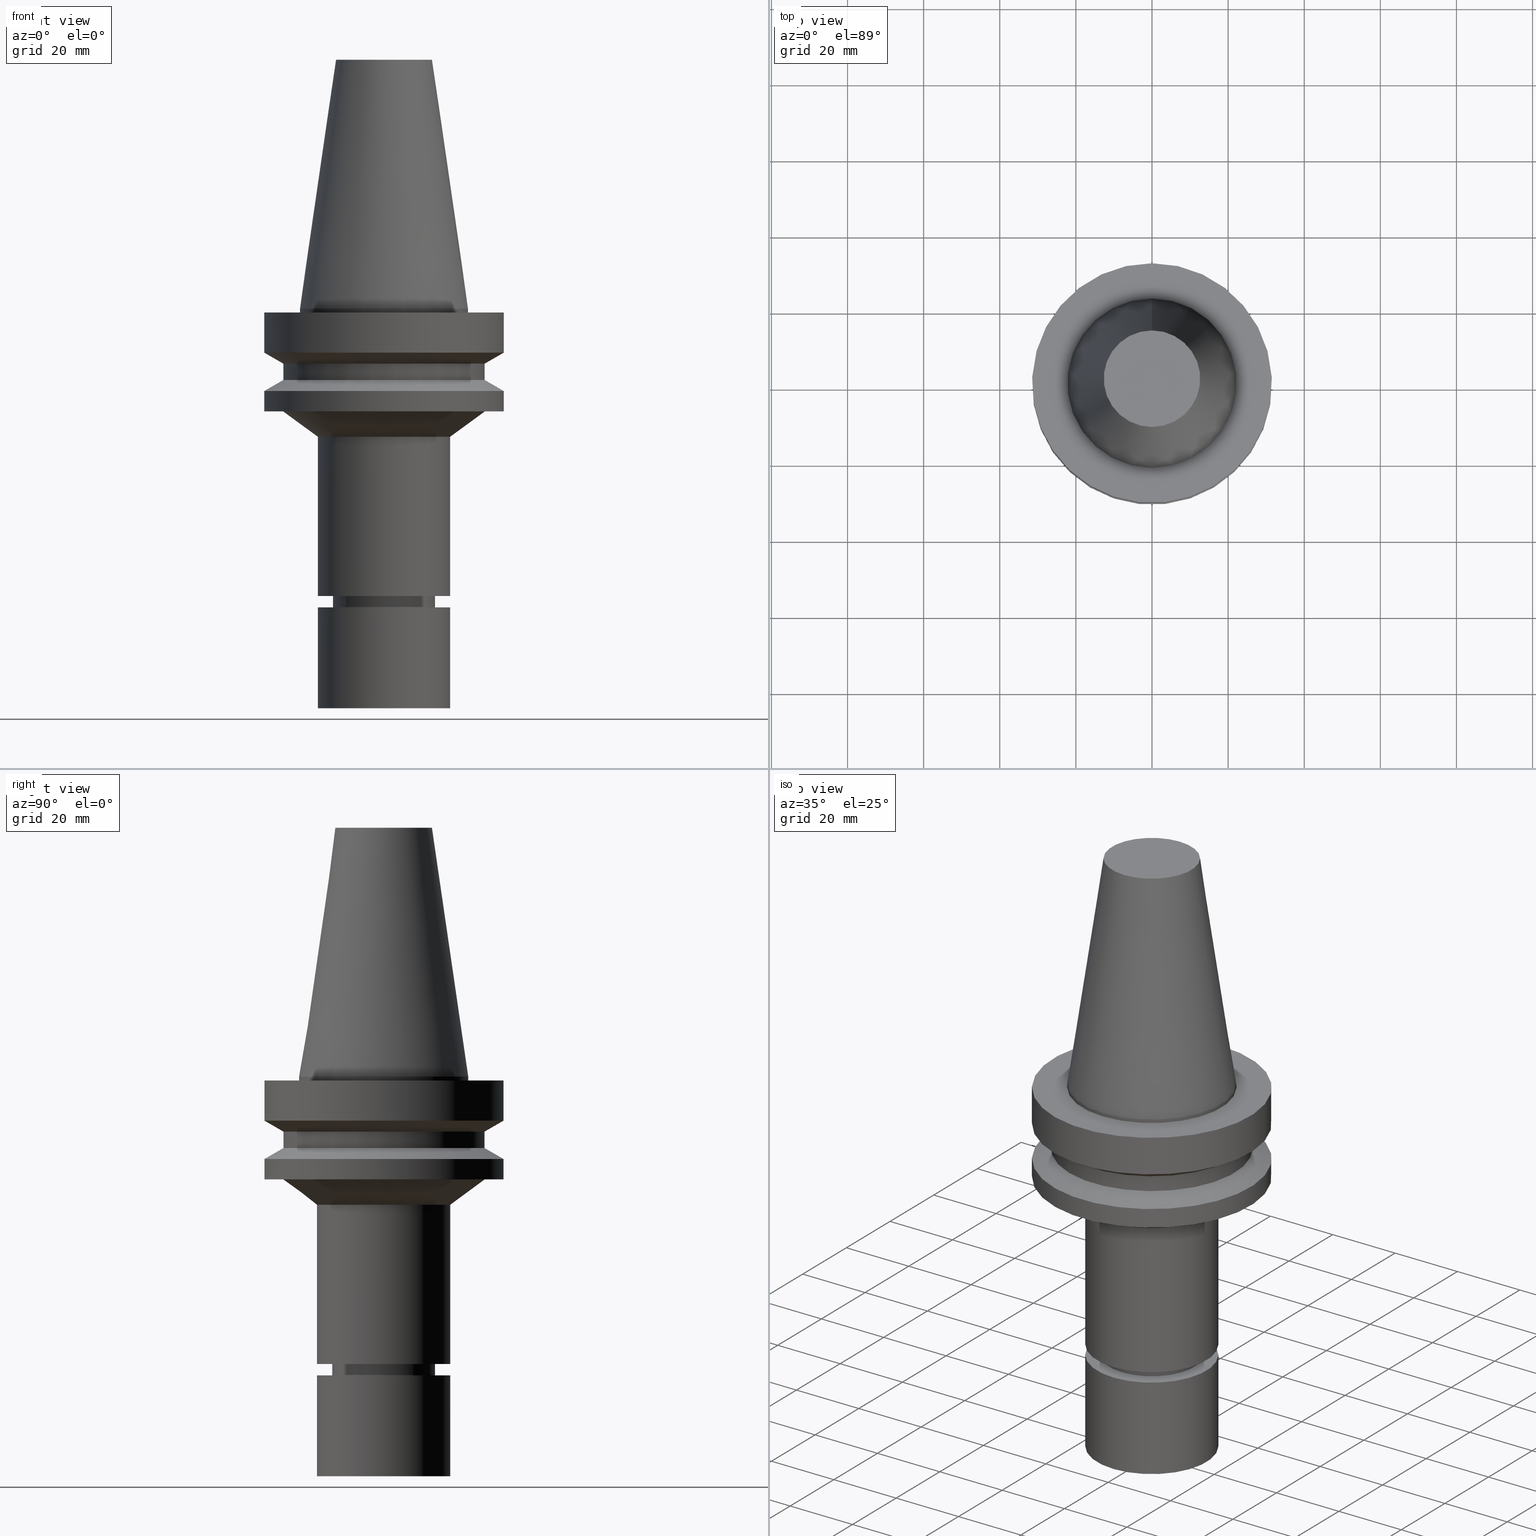
[diagram: canonical four-view strip — front | top / right | iso, engineering-drawing reading convention]
A machine part, canonical four-view strip (front | top / right | iso — engineering-drawing reading convention). The complete STEP part file that produces these views, byte-faithful:
ISO-10303-21;
HEADER;
FILE_DESCRIPTION((''),'1');
FILE_NAME('V:/90_\X2\53D65F9730C730FC30BF\X0\/00_\X2\6DE18DEF30C730FC30BF\X0\/ALL/BBT-BKUS\X2\FF76FF80FF9BFF78FF9E752852A05DE556F3\X0\201801/BBT40-MEGAER/BBT40-MEGAER20-105NL.stp','2018-02-07T02:00:44',(''),(''),'Spatial Interop R21 SP3','Kubotek KeyCreator 2011 V10.0.2 (22737)',' ');
FILE_SCHEMA(('automotive_design'));
ENDSEC;
DATA;
#1=MECHANICAL_DESIGN_GEOMETRIC_PRESENTATION_REPRESENTATION(' ',(#14,#15,#16,#17,#18,#19,#20,#21,#22,#23,#24,#25,#26,#27,#28,#29,#30,#31,#32,#33,#34,#35,#36,#37,#38,#39,#40,#41,#42,#43,#44,#45,#46,#47,#48,#49,#50,#51,#52,#53,#54,#55),#10);
#2=PRODUCT_DEFINITION_CONTEXT('',#56,'design');
#3=APPLICATION_PROTOCOL_DEFINITION('INTERNATIONAL STANDARD','automotive_design',1994,#56);
#4=PRODUCT_CATEGORY_RELATIONSHIP('NONE','NONE',#57,#58);
#5=SHAPE_DEFINITION_REPRESENTATION(#59,#60);
#6=PRODUCT_DEFINITION_CONTEXT('',#61,'design');
#7=APPLICATION_PROTOCOL_DEFINITION('INTERNATIONAL STANDARD','automotive_design',1994,#61);
#8=PRODUCT_CATEGORY_RELATIONSHIP('NONE','NONE',#62,#63);
#9=SHAPE_DEFINITION_REPRESENTATION(#64,#65);
#10= (GEOMETRIC_REPRESENTATION_CONTEXT(3)GLOBAL_UNCERTAINTY_ASSIGNED_CONTEXT((#68))GLOBAL_UNIT_ASSIGNED_CONTEXT((#70,#71,#72))REPRESENTATION_CONTEXT('NONE','WORKSPACE'));
#14=STYLED_ITEM('',(#74,#75),#76);
#15=STYLED_ITEM('',(#77,#78),#79);
#16=STYLED_ITEM('',(#80,#81),#82);
#17=STYLED_ITEM('',(#83),#84);
#18=STYLED_ITEM('',(#85,#86),#87);
#19=STYLED_ITEM('',(#88),#89);
#20=STYLED_ITEM('',(#90,#91),#92);
#21=STYLED_ITEM('',(#93),#94);
#22=STYLED_ITEM('',(#95,#96),#97);
#23=STYLED_ITEM('',(#98,#99),#100);
#24=STYLED_ITEM('',(#101),#102);
#25=STYLED_ITEM('',(#103),#104);
#26=STYLED_ITEM('',(#105),#106);
#27=STYLED_ITEM('',(#107,#108),#109);
#28=STYLED_ITEM('',(#110,#111),#112);
#29=STYLED_ITEM('',(#113,#114),#115);
#30=STYLED_ITEM('',(#116,#117),#118);
#31=STYLED_ITEM('',(#119),#120);
#32=STYLED_ITEM('',(#121),#122);
#33=STYLED_ITEM('',(#123),#124);
#34=STYLED_ITEM('',(#125,#126),#127);
#35=STYLED_ITEM('',(#128,#129),#130);
#36=STYLED_ITEM('',(#131),#132);
#37=STYLED_ITEM('',(#133,#134),#135);
#38=STYLED_ITEM('',(#136),#137);
#39=STYLED_ITEM('',(#138,#139),#140);
#40=STYLED_ITEM('',(#141,#142),#143);
#41=STYLED_ITEM('',(#144),#145);
#42=STYLED_ITEM('',(#146,#147),#148);
#43=STYLED_ITEM('',(#149),#150);
#44=STYLED_ITEM('',(#151),#152);
#45=STYLED_ITEM('',(#153,#154),#155);
#46=STYLED_ITEM('',(#156),#157);
#47=STYLED_ITEM('',(#158,#159),#160);
#48=STYLED_ITEM('',(#161),#162);
#49=STYLED_ITEM('',(#163,#164),#165);
#50=STYLED_ITEM('',(#166),#167);
#51=STYLED_ITEM('',(#168),#169);
#52=STYLED_ITEM('',(#170,#171),#172);
#53=STYLED_ITEM('',(#173),#174);
#54=STYLED_ITEM('',(#175,#176),#177);
#55=STYLED_ITEM('',(#178,#179),#180);
#56=APPLICATION_CONTEXT(' ');
#57=PRODUCT_CATEGORY('part','NONE');
#58=PRODUCT_RELATED_PRODUCT_CATEGORY('detail',' ',(#181));
#59=PRODUCT_DEFINITION_SHAPE('NONE','NONE',#182);
#60=ADVANCED_BREP_SHAPE_REPRESENTATION('Unnamed[1]',(#140,#183),#10);
#61=APPLICATION_CONTEXT(' ');
#62=PRODUCT_CATEGORY('part','NONE');
#63=PRODUCT_RELATED_PRODUCT_CATEGORY('detail',' ',(#184));
#64=PRODUCT_DEFINITION_SHAPE('NONE','NONE',#185);
#65=ADVANCED_BREP_SHAPE_REPRESENTATION('Unnamed[1]',(#177,#186),#10);
#68=UNCERTAINTY_MEASURE_WITH_UNIT(LENGTH_MEASURE(1.0E-006),#70,'','');
#70= (CONVERSION_BASED_UNIT('MILLIMETRE',#189)LENGTH_UNIT()NAMED_UNIT(#192));
#71= (NAMED_UNIT(#194)PLANE_ANGLE_UNIT()SI_UNIT($,.RADIAN.));
#72= (NAMED_UNIT(#194)SOLID_ANGLE_UNIT()SI_UNIT($,.STERADIAN.));
#74=PRESENTATION_STYLE_ASSIGNMENT((#200));
#75=PRESENTATION_STYLE_ASSIGNMENT((#201));
#76=ADVANCED_FACE('Unnamed[1]',(#202,#203),#204,.T.);
#77=PRESENTATION_STYLE_ASSIGNMENT((#205));
#78=PRESENTATION_STYLE_ASSIGNMENT((#206));
#79=ADVANCED_FACE('Unnamed[1]',(#207,#208),#209,.T.);
#80=PRESENTATION_STYLE_ASSIGNMENT((#210));
#81=PRESENTATION_STYLE_ASSIGNMENT((#211));
#82=ADVANCED_FACE('Unnamed[1]',(#212),#213,.T.);
#83=PRESENTATION_STYLE_ASSIGNMENT((#214));
#84=EDGE_CURVE('Unnamed[1]',#215,#215,#216,.T.);
#85=PRESENTATION_STYLE_ASSIGNMENT((#217));
#86=PRESENTATION_STYLE_ASSIGNMENT((#218));
#87=ADVANCED_FACE('Unnamed[1]',(#219,#220),#221,.T.);
#88=PRESENTATION_STYLE_ASSIGNMENT((#222));
#89=EDGE_CURVE('Unnamed[1]',#223,#223,#224,.T.);
#90=PRESENTATION_STYLE_ASSIGNMENT((#225));
#91=PRESENTATION_STYLE_ASSIGNMENT((#226));
#92=ADVANCED_FACE('Unnamed[1]',(#227,#228),#229,.T.);
#93=PRESENTATION_STYLE_ASSIGNMENT((#230));
#94=EDGE_CURVE('Unnamed[1]',#231,#231,#232,.T.);
#95=PRESENTATION_STYLE_ASSIGNMENT((#233));
#96=PRESENTATION_STYLE_ASSIGNMENT((#234));
#97=ADVANCED_FACE('Unnamed[1]',(#235,#236),#237,.T.);
#98=PRESENTATION_STYLE_ASSIGNMENT((#238));
#99=PRESENTATION_STYLE_ASSIGNMENT((#239));
#100=ADVANCED_FACE('Unnamed[1]',(#240,#241),#242,.T.);
#101=PRESENTATION_STYLE_ASSIGNMENT((#243));
#102=EDGE_CURVE('Unnamed[1]',#244,#244,#245,.T.);
#103=PRESENTATION_STYLE_ASSIGNMENT((#246));
#104=EDGE_CURVE('Unnamed[1]',#247,#247,#248,.T.);
#105=PRESENTATION_STYLE_ASSIGNMENT((#249));
#106=EDGE_CURVE('Unnamed[1]',#250,#250,#251,.T.);
#107=PRESENTATION_STYLE_ASSIGNMENT((#252));
#108=PRESENTATION_STYLE_ASSIGNMENT((#253));
#109=ADVANCED_FACE('Unnamed[1]',(#254,#255),#256,.T.);
#110=PRESENTATION_STYLE_ASSIGNMENT((#257));
#111=PRESENTATION_STYLE_ASSIGNMENT((#258));
#112=ADVANCED_FACE('Unnamed[1]',(#259,#260),#261,.T.);
#113=PRESENTATION_STYLE_ASSIGNMENT((#262));
#114=PRESENTATION_STYLE_ASSIGNMENT((#263));
#115=ADVANCED_FACE('Unnamed[1]',(#264,#265),#266,.T.);
#116=PRESENTATION_STYLE_ASSIGNMENT((#267));
#117=PRESENTATION_STYLE_ASSIGNMENT((#268));
#118=ADVANCED_FACE('Unnamed[1]',(#269,#270),#271,.T.);
#119=PRESENTATION_STYLE_ASSIGNMENT((#272));
#120=EDGE_CURVE('Unnamed[1]',#273,#273,#274,.T.);
#121=PRESENTATION_STYLE_ASSIGNMENT((#275));
#122=EDGE_CURVE('Unnamed[1]',#276,#276,#277,.T.);
#123=PRESENTATION_STYLE_ASSIGNMENT((#278));
#124=EDGE_CURVE('Unnamed[1]',#279,#279,#280,.T.);
#125=PRESENTATION_STYLE_ASSIGNMENT((#281));
#126=PRESENTATION_STYLE_ASSIGNMENT((#282));
#127=ADVANCED_FACE('Unnamed[1]',(#283,#284),#285,.T.);
#128=PRESENTATION_STYLE_ASSIGNMENT((#286));
#129=PRESENTATION_STYLE_ASSIGNMENT((#287));
#130=ADVANCED_FACE('Unnamed[1]',(#288),#289,.T.);
#131=PRESENTATION_STYLE_ASSIGNMENT((#290));
#132=EDGE_CURVE('Unnamed[1]',#291,#291,#292,.T.);
#133=PRESENTATION_STYLE_ASSIGNMENT((#293));
#134=PRESENTATION_STYLE_ASSIGNMENT((#294));
#135=ADVANCED_FACE('Unnamed[1]',(#295),#296,.T.);
#136=PRESENTATION_STYLE_ASSIGNMENT((#297));
#137=EDGE_CURVE('Unnamed[1]',#298,#298,#299,.T.);
#138=PRESENTATION_STYLE_ASSIGNMENT((#300));
#139=PRESENTATION_STYLE_ASSIGNMENT((#301));
#140=MANIFOLD_SOLID_BREP('Unnamed[1]',#302);
#141=PRESENTATION_STYLE_ASSIGNMENT((#303));
#142=PRESENTATION_STYLE_ASSIGNMENT((#304));
#143=ADVANCED_FACE('Unnamed[1]',(#305,#306),#307,.T.);
#144=PRESENTATION_STYLE_ASSIGNMENT((#308));
#145=EDGE_CURVE('Unnamed[1]',#309,#309,#310,.T.);
#146=PRESENTATION_STYLE_ASSIGNMENT((#311));
#147=PRESENTATION_STYLE_ASSIGNMENT((#312));
#148=ADVANCED_FACE('Unnamed[1]',(#313),#314,.T.);
#149=PRESENTATION_STYLE_ASSIGNMENT((#315));
#150=EDGE_CURVE('Unnamed[1]',#316,#316,#317,.T.);
#151=PRESENTATION_STYLE_ASSIGNMENT((#318));
#152=EDGE_CURVE('Unnamed[1]',#319,#319,#320,.T.);
#153=PRESENTATION_STYLE_ASSIGNMENT((#321));
#154=PRESENTATION_STYLE_ASSIGNMENT((#322));
#155=ADVANCED_FACE('Unnamed[1]',(#323,#324),#325,.T.);
#156=PRESENTATION_STYLE_ASSIGNMENT((#326));
#157=EDGE_CURVE('Unnamed[1]',#327,#327,#328,.T.);
#158=PRESENTATION_STYLE_ASSIGNMENT((#329));
#159=PRESENTATION_STYLE_ASSIGNMENT((#330));
#160=ADVANCED_FACE('Unnamed[1]',(#331,#332),#333,.T.);
#161=PRESENTATION_STYLE_ASSIGNMENT((#334));
#162=EDGE_CURVE('Unnamed[1]',#335,#335,#336,.T.);
#163=PRESENTATION_STYLE_ASSIGNMENT((#337));
#164=PRESENTATION_STYLE_ASSIGNMENT((#338));
#165=ADVANCED_FACE('Unnamed[1]',(#339,#340),#341,.T.);
#166=PRESENTATION_STYLE_ASSIGNMENT((#342));
#167=EDGE_CURVE('Unnamed[1]',#343,#343,#344,.T.);
#168=PRESENTATION_STYLE_ASSIGNMENT((#345));
#169=EDGE_CURVE('Unnamed[1]',#346,#346,#347,.T.);
#170=PRESENTATION_STYLE_ASSIGNMENT((#348));
#171=PRESENTATION_STYLE_ASSIGNMENT((#349));
#172=ADVANCED_FACE('Unnamed[1]',(#350,#351),#352,.T.);
#173=PRESENTATION_STYLE_ASSIGNMENT((#353));
#174=EDGE_CURVE('Unnamed[1]',#354,#354,#355,.T.);
#175=PRESENTATION_STYLE_ASSIGNMENT((#356));
#176=PRESENTATION_STYLE_ASSIGNMENT((#357));
#177=MANIFOLD_SOLID_BREP('Unnamed[1]',#358);
#178=PRESENTATION_STYLE_ASSIGNMENT((#359));
#179=PRESENTATION_STYLE_ASSIGNMENT((#360));
#180=ADVANCED_FACE('Unnamed[1]',(#361,#362),#363,.T.);
#181=PRODUCT('Unnamed[1]','Unnamed[1]','PART-Unnamed[1]-DESC',(#364));
#182=PRODUCT_DEFINITION('NONE','NONE',#365,#2);
#183=AXIS2_PLACEMENT_3D('',#366,#367,#368);
#184=PRODUCT('Unnamed[1]','Unnamed[1]','PART-Unnamed[1]-DESC',(#369));
#185=PRODUCT_DEFINITION('NONE','NONE',#370,#6);
#186=AXIS2_PLACEMENT_3D('',#371,#372,#373);
#189=LENGTH_MEASURE_WITH_UNIT(LENGTH_MEASURE(1.0),#374);
#192=DIMENSIONAL_EXPONENTS(1.0,0.0,0.0,0.0,0.0,0.0,0.0);
#194=DIMENSIONAL_EXPONENTS(0.0,0.0,0.0,0.0,0.0,0.0,0.0);
#200=SURFACE_STYLE_USAGE(.BOTH.,#375);
#201=CURVE_STYLE('',#376,POSITIVE_LENGTH_MEASURE(1000.0),#377);
#202=FACE_BOUND('',#378,.T.);
#203=FACE_BOUND('',#379,.T.);
#204=CONICAL_SURFACE('',#380,17.45625,0.144812498238936);
#205=SURFACE_STYLE_USAGE(.BOTH.,#381);
#206=CURVE_STYLE('',#382,POSITIVE_LENGTH_MEASURE(1000.0),#383);
#207=FACE_BOUND('',#384,.T.);
#208=FACE_BOUND('',#385,.T.);
#209=CONICAL_SURFACE('',#386,29.0000000000003,1.04719755119651);
#210=SURFACE_STYLE_USAGE(.BOTH.,#387);
#211=CURVE_STYLE('',#388,POSITIVE_LENGTH_MEASURE(1000.0),#389);
#212=FACE_OUTER_BOUND('',#390,.T.);
#213=PLANE('',#391);
#214=CURVE_STYLE('',#392,POSITIVE_LENGTH_MEASURE(1000.0),#393);
#215=VERTEX_POINT('',#394);
#216=CIRCLE('',#395,11.3999999999978);
#217=SURFACE_STYLE_USAGE(.BOTH.,#396);
#218=CURVE_STYLE('',#397,POSITIVE_LENGTH_MEASURE(1000.0),#398);
#219=FACE_BOUND('',#399,.T.);
#220=FACE_OUTER_BOUND('',#400,.T.);
#221=PLANE('',#401);
#222=CURVE_STYLE('',#402,POSITIVE_LENGTH_MEASURE(1000.0),#403);
#223=VERTEX_POINT('',#404);
#224=CIRCLE('',#405,22.225);
#225=SURFACE_STYLE_USAGE(.BOTH.,#406);
#226=CURVE_STYLE('',#407,POSITIVE_LENGTH_MEASURE(1000.0),#408);
#227=FACE_BOUND('',#409,.T.);
#228=FACE_BOUND('',#410,.T.);
#229=CONICAL_SURFACE('',#411,11.9499999999988,0.523598775598658);
#230=CURVE_STYLE('',#412,POSITIVE_LENGTH_MEASURE(1000.0),#413);
#231=VERTEX_POINT('',#414);
#232=CIRCLE('',#415,12.6875000000001);
#233=SURFACE_STYLE_USAGE(.BOTH.,#416);
#234=CURVE_STYLE('',#417,POSITIVE_LENGTH_MEASURE(1000.0),#418);
#235=FACE_BOUND('',#419,.T.);
#236=FACE_BOUND('',#420,.T.);
#237=CYLINDRICAL_SURFACE('',#421,26.4999999999997);
#238=SURFACE_STYLE_USAGE(.BOTH.,#422);
#239=CURVE_STYLE('',#423,POSITIVE_LENGTH_MEASURE(1000.0),#424);
#240=FACE_BOUND('',#425,.T.);
#241=FACE_BOUND('',#426,.T.);
#242=CYLINDRICAL_SURFACE('',#427,22.225);
#243=CURVE_STYLE('',#428,POSITIVE_LENGTH_MEASURE(1000.0),#429);
#244=VERTEX_POINT('',#430);
#245=CIRCLE('',#431,13.4999999999907);
#246=CURVE_STYLE('',#432,POSITIVE_LENGTH_MEASURE(1000.0),#433);
#247=VERTEX_POINT('',#434);
#248=CIRCLE('',#435,12.4999999999999);
#249=CURVE_STYLE('',#436,POSITIVE_LENGTH_MEASURE(1000.0),#437);
#250=VERTEX_POINT('',#438);
#251=CIRCLE('',#439,26.5445817036666);
#252=SURFACE_STYLE_USAGE(.BOTH.,#440);
#253=CURVE_STYLE('',#441,POSITIVE_LENGTH_MEASURE(1000.0),#442);
#254=FACE_BOUND('',#443,.T.);
#255=FACE_BOUND('',#444,.T.);
#256=CONICAL_SURFACE('',#445,22.0222908518337,0.935754396976019);
#257=SURFACE_STYLE_USAGE(.BOTH.,#446);
#258=CURVE_STYLE('',#447,POSITIVE_LENGTH_MEASURE(1000.0),#448);
#259=FACE_BOUND('',#449,.T.);
#260=FACE_BOUND('',#450,.T.);
#261=CYLINDRICAL_SURFACE('',#451,13.4999999999956);
#262=SURFACE_STYLE_USAGE(.BOTH.,#452);
#263=CURVE_STYLE('',#453,POSITIVE_LENGTH_MEASURE(1000.0),#454);
#264=FACE_BOUND('',#455,.T.);
#265=FACE_OUTER_BOUND('',#456,.T.);
#266=PLANE('',#457);
#267=SURFACE_STYLE_USAGE(.BOTH.,#458);
#268=CURVE_STYLE('',#459,POSITIVE_LENGTH_MEASURE(1000.0),#460);
#269=FACE_BOUND('',#461,.T.);
#270=FACE_BOUND('',#462,.T.);
#271=CONICAL_SURFACE('',#463,13.0000000000001,1.04719755119484);
#272=CURVE_STYLE('',#464,POSITIVE_LENGTH_MEASURE(1000.0),#465);
#273=VERTEX_POINT('',#466);
#274=CIRCLE('',#467,31.5000000000003);
#275=CURVE_STYLE('',#468,POSITIVE_LENGTH_MEASURE(1000.0),#469);
#276=VERTEX_POINT('',#470);
#277=CIRCLE('',#471,17.4999999999998);
#278=CURVE_STYLE('',#472,POSITIVE_LENGTH_MEASURE(1000.0),#473);
#279=VERTEX_POINT('',#474);
#280=CIRCLE('',#475,17.5);
#281=SURFACE_STYLE_USAGE(.BOTH.,#476);
#282=CURVE_STYLE('',#477,POSITIVE_LENGTH_MEASURE(1000.0),#478);
#283=FACE_BOUND('',#479,.T.);
#284=FACE_BOUND('',#480,.T.);
#285=CYLINDRICAL_SURFACE('',#481,12.4999999999998);
#286=SURFACE_STYLE_USAGE(.BOTH.,#482);
#287=CURVE_STYLE('',#483,POSITIVE_LENGTH_MEASURE(1000.0),#484);
#288=FACE_OUTER_BOUND('',#485,.T.);
#289=PLANE('',#486);
#290=CURVE_STYLE('',#487,POSITIVE_LENGTH_MEASURE(1000.0),#488);
#291=VERTEX_POINT('',#489);
#292=CIRCLE('',#490,17.5);
#293=SURFACE_STYLE_USAGE(.BOTH.,#491);
#294=CURVE_STYLE('',#492,POSITIVE_LENGTH_MEASURE(1000.0),#493);
#295=FACE_OUTER_BOUND('',#494,.T.);
#296=PLANE('',#495);
#297=CURVE_STYLE('',#496,POSITIVE_LENGTH_MEASURE(1000.0),#497);
#298=VERTEX_POINT('',#498);
#299=CIRCLE('',#499,26.4999999999994);
#300=SURFACE_STYLE_USAGE(.BOTH.,#500);
#301=CURVE_STYLE('',#501,POSITIVE_LENGTH_MEASURE(1000.0),#502);
#302=CLOSED_SHELL('',(#148,#76,#100,#160,#180,#143,#97,#79,#155,#115,#109,#165,#87,#112,#118,#127,#92,#82));
#303=SURFACE_STYLE_USAGE(.BOTH.,#503);
#304=CURVE_STYLE('',#504,POSITIVE_LENGTH_MEASURE(1000.0),#505);
#305=FACE_BOUND('',#506,.T.);
#306=FACE_BOUND('',#507,.T.);
#307=CONICAL_SURFACE('',#508,28.9999999999999,1.04719755119657);
#308=CURVE_STYLE('',#509,POSITIVE_LENGTH_MEASURE(1000.0),#510);
#309=VERTEX_POINT('',#511);
#310=CIRCLE('',#512,17.5000000000009);
#311=SURFACE_STYLE_USAGE(.BOTH.,#513);
#312=CURVE_STYLE('',#514,POSITIVE_LENGTH_MEASURE(1000.0),#515);
#313=FACE_OUTER_BOUND('',#516,.T.);
#314=PLANE('',#517);
#315=CURVE_STYLE('',#518,POSITIVE_LENGTH_MEASURE(1000.0),#519);
#316=VERTEX_POINT('',#520);
#317=CIRCLE('',#521,13.5000000000004);
#318=CURVE_STYLE('',#522,POSITIVE_LENGTH_MEASURE(1000.0),#523);
#319=VERTEX_POINT('',#524);
#320=CIRCLE('',#525,26.5);
#321=SURFACE_STYLE_USAGE(.BOTH.,#526);
#322=CURVE_STYLE('',#527,POSITIVE_LENGTH_MEASURE(1000.0),#528);
#323=FACE_BOUND('',#529,.T.);
#324=FACE_BOUND('',#530,.T.);
#325=CYLINDRICAL_SURFACE('',#531,31.5000000000005);
#326=CURVE_STYLE('',#532,POSITIVE_LENGTH_MEASURE(1000.0),#533);
#327=VERTEX_POINT('',#534);
#328=CIRCLE('',#535,22.225);
#329=SURFACE_STYLE_USAGE(.BOTH.,#536);
#330=CURVE_STYLE('',#537,POSITIVE_LENGTH_MEASURE(1000.0),#538);
#331=FACE_OUTER_BOUND('',#539,.T.);
#332=FACE_BOUND('',#540,.T.);
#333=PLANE('',#541);
#334=CURVE_STYLE('',#542,POSITIVE_LENGTH_MEASURE(1000.0),#543);
#335=VERTEX_POINT('',#544);
#336=CIRCLE('',#545,31.5000000000003);
#337=SURFACE_STYLE_USAGE(.BOTH.,#546);
#338=CURVE_STYLE('',#547,POSITIVE_LENGTH_MEASURE(1000.0),#548);
#339=FACE_BOUND('',#549,.T.);
#340=FACE_BOUND('',#550,.T.);
#341=CYLINDRICAL_SURFACE('',#551,17.5000000000003);
#342=CURVE_STYLE('',#552,POSITIVE_LENGTH_MEASURE(1000.0),#553);
#343=VERTEX_POINT('',#554);
#344=CIRCLE('',#555,12.4999999999997);
#345=CURVE_STYLE('',#556,POSITIVE_LENGTH_MEASURE(1000.0),#557);
#346=VERTEX_POINT('',#558);
#347=CIRCLE('',#559,31.4999999999996);
#348=SURFACE_STYLE_USAGE(.BOTH.,#560);
#349=CURVE_STYLE('',#561,POSITIVE_LENGTH_MEASURE(1000.0),#562);
#350=FACE_BOUND('',#563,.T.);
#351=FACE_BOUND('',#564,.T.);
#352=CYLINDRICAL_SURFACE('',#565,17.5);
#353=CURVE_STYLE('',#566,POSITIVE_LENGTH_MEASURE(1000.0),#567);
#354=VERTEX_POINT('',#568);
#355=CIRCLE('',#569,31.5000000000006);
#356=SURFACE_STYLE_USAGE(.BOTH.,#570);
#357=CURVE_STYLE('',#571,POSITIVE_LENGTH_MEASURE(1000.0),#572);
#358=CLOSED_SHELL('',(#135,#130,#172));
#359=SURFACE_STYLE_USAGE(.BOTH.,#573);
#360=CURVE_STYLE('',#574,POSITIVE_LENGTH_MEASURE(1000.0),#575);
#361=FACE_BOUND('',#576,.T.);
#362=FACE_BOUND('',#577,.T.);
#363=CYLINDRICAL_SURFACE('',#578,31.5);
#364=PRODUCT_CONTEXT('',#56,'mechanical');
#365=PRODUCT_DEFINITION_FORMATION_WITH_SPECIFIED_SOURCE(' ','NONE',#181,.NOT_KNOWN.);
#366=CARTESIAN_POINT('',(0.0,0.0,0.0));
#367=DIRECTION('',(0.0,0.0,1.0));
#368=DIRECTION('',(1.0,0.0,0.0));
#369=PRODUCT_CONTEXT('',#61,'mechanical');
#370=PRODUCT_DEFINITION_FORMATION_WITH_SPECIFIED_SOURCE(' ','NONE',#184,.NOT_KNOWN.);
#371=CARTESIAN_POINT('',(0.0,0.0,0.0));
#372=DIRECTION('',(0.0,0.0,1.0));
#373=DIRECTION('',(1.0,0.0,0.0));
#374= (NAMED_UNIT(#192)LENGTH_UNIT()SI_UNIT(.MILLI.,.METRE.));
#375=SURFACE_SIDE_STYLE('',(#580));
#376=DRAUGHTING_PRE_DEFINED_CURVE_FONT('continuous');
#377=COLOUR_RGB('',0.0,1.0,0.0);
#378=EDGE_LOOP('',(#581));
#379=EDGE_LOOP('',(#582));
#380=AXIS2_PLACEMENT_3D('',#583,#584,#585);
#381=SURFACE_SIDE_STYLE('',(#586));
#382=DRAUGHTING_PRE_DEFINED_CURVE_FONT('continuous');
#383=COLOUR_RGB('',0.0,1.0,0.0);
#384=EDGE_LOOP('',(#587));
#385=EDGE_LOOP('',(#588));
#386=AXIS2_PLACEMENT_3D('',#589,#590,#591);
#387=SURFACE_SIDE_STYLE('',(#592));
#388=DRAUGHTING_PRE_DEFINED_CURVE_FONT('continuous');
#389=COLOUR_RGB('',0.0,1.0,0.0);
#390=EDGE_LOOP('',(#593));
#391=AXIS2_PLACEMENT_3D('',#594,#595,#596);
#392=DRAUGHTING_PRE_DEFINED_CURVE_FONT('continuous');
#393=COLOUR_RGB('',0.0,1.0,0.0);
#394=CARTESIAN_POINT('',(5.82931876394141E-015,11.3999999999978,-95.2000000000001));
#395=AXIS2_PLACEMENT_3D('',#597,#598,#599);
#396=SURFACE_SIDE_STYLE('',(#600));
#397=DRAUGHTING_PRE_DEFINED_CURVE_FONT('continuous');
#398=COLOUR_RGB('',0.0,1.0,0.0);
#399=EDGE_LOOP('',(#601));
#400=EDGE_LOOP('',(#602));
#401=AXIS2_PLACEMENT_3D('',#603,#604,#605);
#402=DRAUGHTING_PRE_DEFINED_CURVE_FONT('continuous');
#403=COLOUR_RGB('',0.0,1.0,0.0);
#404=CARTESIAN_POINT('',(1.71319921032766E-029,22.2250000000001,-2.8153873565375E-013));
#405=AXIS2_PLACEMENT_3D('',#606,#607,#608);
#406=SURFACE_SIDE_STYLE('',(#609));
#407=DRAUGHTING_PRE_DEFINED_CURVE_FONT('continuous');
#408=COLOUR_RGB('',0.0,1.0,0.0);
#409=EDGE_LOOP('',(#610));
#410=EDGE_LOOP('',(#611));
#411=AXIS2_PLACEMENT_3D('',#612,#613,#614);
#412=DRAUGHTING_PRE_DEFINED_CURVE_FONT('continuous');
#413=COLOUR_RGB('',0.0,1.0,0.0);
#414=CARTESIAN_POINT('',(-4.00459503321185E-015,12.6875000000002,65.4000000000001));
#415=AXIS2_PLACEMENT_3D('',#615,#616,#617);
#416=SURFACE_SIDE_STYLE('',(#618));
#417=DRAUGHTING_PRE_DEFINED_CURVE_FONT('continuous');
#418=COLOUR_RGB('',0.0,1.0,0.0);
#419=EDGE_LOOP('',(#619));
#420=EDGE_LOOP('',(#620));
#421=AXIS2_PLACEMENT_3D('',#621,#622,#623);
#422=SURFACE_SIDE_STYLE('',(#624));
#423=DRAUGHTING_PRE_DEFINED_CURVE_FONT('continuous');
#424=COLOUR_RGB('',0.0,1.0,0.0);
#425=EDGE_LOOP('',(#625));
#426=EDGE_LOOP('',(#626));
#427=AXIS2_PLACEMENT_3D('',#627,#628,#629);
#428=DRAUGHTING_PRE_DEFINED_CURVE_FONT('continuous');
#429=COLOUR_RGB('',0.0,1.0,0.0);
#430=CARTESIAN_POINT('',(4.62304166678123E-015,13.4999999999908,-75.4999999999996));
#431=AXIS2_PLACEMENT_3D('',#630,#631,#632);
#432=DRAUGHTING_PRE_DEFINED_CURVE_FONT('continuous');
#433=COLOUR_RGB('',0.0,1.0,0.0);
#434=CARTESIAN_POINT('',(5.01490875023964E-015,12.4999999999999,-81.8996751345975));
#435=AXIS2_PLACEMENT_3D('',#633,#634,#635);
#436=DRAUGHTING_PRE_DEFINED_CURVE_FONT('continuous');
#437=COLOUR_RGB('',0.0,1.0,0.0);
#438=CARTESIAN_POINT('',(1.65327317884891E-015,26.5445817036666,-26.9999999999998));
#439=AXIS2_PLACEMENT_3D('',#636,#637,#638);
#440=SURFACE_SIDE_STYLE('',(#639));
#441=DRAUGHTING_PRE_DEFINED_CURVE_FONT('continuous');
#442=COLOUR_RGB('',0.0,1.0,0.0);
#443=EDGE_LOOP('',(#640));
#444=EDGE_LOOP('',(#641));
#445=AXIS2_PLACEMENT_3D('',#642,#643,#644);
#446=SURFACE_SIDE_STYLE('',(#645));
#447=DRAUGHTING_PRE_DEFINED_CURVE_FONT('continuous');
#448=COLOUR_RGB('',0.0,1.0,0.0);
#449=EDGE_LOOP('',(#646));
#450=EDGE_LOOP('',(#647));
#451=AXIS2_PLACEMENT_3D('',#648,#649,#650);
#452=SURFACE_SIDE_STYLE('',(#651));
#453=DRAUGHTING_PRE_DEFINED_CURVE_FONT('continuous');
#454=COLOUR_RGB('',0.0,1.0,0.0);
#455=EDGE_LOOP('',(#652));
#456=EDGE_LOOP('',(#653));
#457=AXIS2_PLACEMENT_3D('',#654,#655,#656);
#458=SURFACE_SIDE_STYLE('',(#657));
#459=DRAUGHTING_PRE_DEFINED_CURVE_FONT('continuous');
#460=COLOUR_RGB('',0.0,1.0,0.0);
#461=EDGE_LOOP('',(#658));
#462=EDGE_LOOP('',(#659));
#463=AXIS2_PLACEMENT_3D('',#660,#661,#662);
#464=DRAUGHTING_PRE_DEFINED_CURVE_FONT('continuous');
#465=COLOUR_RGB('',0.0,1.0,0.0);
#466=CARTESIAN_POINT('',(7.08182973902924E-016,31.5000000000004,-11.5655056526664));
#467=AXIS2_PLACEMENT_3D('',#663,#664,#665);
#468=DRAUGHTING_PRE_DEFINED_CURVE_FONT('continuous');
#469=COLOUR_RGB('',0.0,1.0,0.0);
#470=CARTESIAN_POINT('',(4.62304166678124E-015,17.4999999999999,-75.4999999999998));
#471=AXIS2_PLACEMENT_3D('',#666,#667,#668);
#472=DRAUGHTING_PRE_DEFINED_CURVE_FONT('continuous');
#473=COLOUR_RGB('',0.0,1.0,0.0);
#474=CARTESIAN_POINT('',(4.80673962098472E-015,17.5,-78.500015258789));
#475=AXIS2_PLACEMENT_3D('',#669,#670,#671);
#476=SURFACE_SIDE_STYLE('',(#672));
#477=DRAUGHTING_PRE_DEFINED_CURVE_FONT('continuous');
#478=COLOUR_RGB('',0.0,1.0,0.0);
#479=EDGE_LOOP('',(#673));
#480=EDGE_LOOP('',(#674));
#481=AXIS2_PLACEMENT_3D('',#675,#676,#677);
#482=SURFACE_SIDE_STYLE('',(#678));
#483=DRAUGHTING_PRE_DEFINED_CURVE_FONT('continuous');
#484=COLOUR_RGB('',0.0,1.0,0.0);
#485=EDGE_LOOP('',(#679));
#486=AXIS2_PLACEMENT_3D('',#680,#681,#682);
#487=DRAUGHTING_PRE_DEFINED_CURVE_FONT('continuous');
#488=COLOUR_RGB('',0.0,1.0,0.0);
#489=CARTESIAN_POINT('',(6.4293956955236E-015,17.5,-105.0));
#490=AXIS2_PLACEMENT_3D('',#683,#684,#685);
#491=SURFACE_SIDE_STYLE('',(#686));
#492=DRAUGHTING_PRE_DEFINED_CURVE_FONT('continuous');
#493=COLOUR_RGB('',0.0,1.0,0.0);
#494=EDGE_LOOP('',(#687));
#495=AXIS2_PLACEMENT_3D('',#688,#689,#690);
#496=DRAUGHTING_PRE_DEFINED_CURVE_FONT('continuous');
#497=COLOUR_RGB('',0.0,1.0,0.0);
#498=CARTESIAN_POINT('',(8.8494551369045E-016,26.4999999999995,-14.4522569986152));
#499=AXIS2_PLACEMENT_3D('',#691,#692,#693);
#500=SURFACE_SIDE_STYLE('',(#694));
#501=DRAUGHTING_PRE_DEFINED_CURVE_FONT('continuous');
#502=COLOUR_RGB('',0.0,1.0,0.0);
#503=SURFACE_SIDE_STYLE('',(#695));
#504=DRAUGHTING_PRE_DEFINED_CURVE_FONT('continuous');
#505=COLOUR_RGB('',0.0,1.0,0.0);
#506=EDGE_LOOP('',(#696));
#507=EDGE_LOOP('',(#697));
#508=AXIS2_PLACEMENT_3D('',#698,#699,#700);
#509=DRAUGHTING_PRE_DEFINED_CURVE_FONT('continuous');
#510=COLOUR_RGB('',0.0,1.0,0.0);
#511=CARTESIAN_POINT('',(2.06136472190229E-015,17.500000000001,-33.6646406676194));
#512=AXIS2_PLACEMENT_3D('',#701,#702,#703);
#513=SURFACE_SIDE_STYLE('',(#704));
#514=DRAUGHTING_PRE_DEFINED_CURVE_FONT('continuous');
#515=COLOUR_RGB('',0.0,1.0,0.0);
#516=EDGE_LOOP('',(#705));
#517=AXIS2_PLACEMENT_3D('',#706,#707,#708);
#518=DRAUGHTING_PRE_DEFINED_CURVE_FONT('continuous');
#519=COLOUR_RGB('',0.0,1.0,0.0);
#520=CARTESIAN_POINT('',(4.97955624228198E-015,13.5000000000005,-81.3223248654052));
#521=AXIS2_PLACEMENT_3D('',#709,#710,#711);
#522=DRAUGHTING_PRE_DEFINED_CURVE_FONT('continuous');
#523=COLOUR_RGB('',0.0,1.0,0.0);
#524=CARTESIAN_POINT('',(1.1479681728942E-015,26.5,-18.7477430013855));
#525=AXIS2_PLACEMENT_3D('',#712,#713,#714);
#526=SURFACE_SIDE_STYLE('',(#715));
#527=DRAUGHTING_PRE_DEFINED_CURVE_FONT('continuous');
#528=COLOUR_RGB('',0.0,1.0,0.0);
#529=EDGE_LOOP('',(#716));
#530=EDGE_LOOP('',(#717));
#531=AXIS2_PLACEMENT_3D('',#718,#719,#720);
#532=DRAUGHTING_PRE_DEFINED_CURVE_FONT('continuous');
#533=COLOUR_RGB('',0.0,1.0,0.0);
#534=CARTESIAN_POINT('',(6.12323399573622E-017,22.2250000000001,-0.999999999999912));
#535=AXIS2_PLACEMENT_3D('',#721,#722,#723);
#536=SURFACE_SIDE_STYLE('',(#724));
#537=DRAUGHTING_PRE_DEFINED_CURVE_FONT('continuous');
#538=COLOUR_RGB('',0.0,1.0,0.0);
#539=EDGE_LOOP('',(#725));
#540=EDGE_LOOP('',(#726));
#541=AXIS2_PLACEMENT_3D('',#727,#728,#729);
#542=DRAUGHTING_PRE_DEFINED_CURVE_FONT('continuous');
#543=COLOUR_RGB('',0.0,1.0,0.0);
#544=CARTESIAN_POINT('',(1.65327317884891E-015,31.5000000000004,-26.9999999999998));
#545=AXIS2_PLACEMENT_3D('',#730,#731,#732);
#546=SURFACE_SIDE_STYLE('',(#733));
#547=DRAUGHTING_PRE_DEFINED_CURVE_FONT('continuous');
#548=COLOUR_RGB('',0.0,1.0,0.0);
#549=EDGE_LOOP('',(#734));
#550=EDGE_LOOP('',(#735));
#551=AXIS2_PLACEMENT_3D('',#736,#737,#738);
#552=DRAUGHTING_PRE_DEFINED_CURVE_FONT('continuous');
#553=COLOUR_RGB('',0.0,1.0,0.0);
#554=CARTESIAN_POINT('',(5.71265548768156E-015,12.4999999999998,-93.2947441116725));
#555=AXIS2_PLACEMENT_3D('',#739,#740,#741);
#556=DRAUGHTING_PRE_DEFINED_CURVE_FONT('continuous');
#557=COLOUR_RGB('',0.0,1.0,0.0);
#558=CARTESIAN_POINT('',(6.12323399573568E-017,31.4999999999997,-0.999999999999825));
#559=AXIS2_PLACEMENT_3D('',#742,#743,#744);
#560=SURFACE_SIDE_STYLE('',(#745));
#561=DRAUGHTING_PRE_DEFINED_CURVE_FONT('continuous');
#562=COLOUR_RGB('',0.0,1.0,0.0);
#563=EDGE_LOOP('',(#746));
#564=EDGE_LOOP('',(#747));
#565=AXIS2_PLACEMENT_3D('',#748,#749,#750);
#566=DRAUGHTING_PRE_DEFINED_CURVE_FONT('continuous');
#567=COLOUR_RGB('',0.0,1.0,0.0);
#568=CARTESIAN_POINT('',(1.32473071268174E-015,31.5000000000007,-21.6344943473346));
#569=AXIS2_PLACEMENT_3D('',#751,#752,#753);
#570=SURFACE_SIDE_STYLE('',(#754));
#571=DRAUGHTING_PRE_DEFINED_CURVE_FONT('continuous');
#572=COLOUR_RGB('',0.0,1.0,0.0);
#573=SURFACE_SIDE_STYLE('',(#755));
#574=DRAUGHTING_PRE_DEFINED_CURVE_FONT('continuous');
#575=COLOUR_RGB('',0.0,1.0,0.0);
#576=EDGE_LOOP('',(#756));
#577=EDGE_LOOP('',(#757));
#578=AXIS2_PLACEMENT_3D('',#758,#759,#760);
#580=SURFACE_STYLE_FILL_AREA(#761);
#581=ORIENTED_EDGE('',*,*,#89,.F.);
#582=ORIENTED_EDGE('',*,*,#94,.T.);
#583=CARTESIAN_POINT('',(-2.00229751660592E-015,7.27451002273759E-014,32.6999999999999));
#584=DIRECTION('',(6.12323399573677E-017,-1.31253561610864E-016,-1.0));
#585=DIRECTION('',(3.20980997441273E-033,1.0,-1.31253561610864E-016));
#586=SURFACE_STYLE_FILL_AREA(#762);
#587=ORIENTED_EDGE('',*,*,#174,.F.);
#588=ORIENTED_EDGE('',*,*,#152,.T.);
#589=CARTESIAN_POINT('',(1.23634944278797E-015,6.58029525237841E-014,-20.1911186743601));
#590=DIRECTION('',(6.12323399573677E-017,-1.31253561610805E-016,-1.0));
#591=DIRECTION('',(3.20980997440445E-033,1.0,-1.31253561610805E-016));
#592=SURFACE_STYLE_FILL_AREA(#763);
#593=ORIENTED_EDGE('',*,*,#84,.T.);
#594=CARTESIAN_POINT('',(5.82931876394141E-015,5.69999999999893,-95.2000000000001));
#595=DIRECTION('',(6.12323399573677E-017,-7.35693253861411E-015,-1.0));
#596=DIRECTION('',(4.4565504151707E-031,1.0,-7.35693253861411E-015));
#597=CARTESIAN_POINT('',(5.82931876394141E-015,5.59577696973484E-014,-95.2000000000001));
#598=DIRECTION('',(6.12323399573677E-017,-1.31253561610844E-016,-1.0));
#599=DIRECTION('',(3.20980997440582E-033,1.0,-1.31253561610844E-016));
#600=SURFACE_STYLE_FILL_AREA(#764);
#601=ORIENTED_EDGE('',*,*,#102,.F.);
#602=ORIENTED_EDGE('',*,*,#122,.T.);
#603=CARTESIAN_POINT('',(4.62304166678124E-015,15.4999999999953,-75.4999999999997));
#604=DIRECTION('',(6.12323399573677E-017,-4.96155268231796E-014,-1.0));
#605=DIRECTION('',(3.03324765287006E-030,1.0,-4.96155268231796E-014));
#606=CARTESIAN_POINT('',(1.74032777401202E-029,6.84531087627011E-014,-2.8421709430404E-013));
#607=DIRECTION('',(6.12323399573677E-017,-1.31253561610879E-016,-1.0));
#608=DIRECTION('',(3.20980997440837E-033,1.0,-1.31253561610879E-016));
#609=SURFACE_STYLE_FILL_AREA(#765);
#610=ORIENTED_EDGE('',*,*,#84,.F.);
#611=ORIENTED_EDGE('',*,*,#167,.T.);
#612=CARTESIAN_POINT('',(5.77098712581148E-015,5.60828055079099E-014,-94.2473720558363));
#613=DIRECTION('',(-6.12323399573677E-017,1.31253561610882E-016,1.0));
#614=DIRECTION('',(3.20980997441228E-033,1.0,-1.31253561610882E-016));
#615=CARTESIAN_POINT('',(-4.00459503321185E-015,7.70370916920507E-014,65.4000000000001));
#616=DIRECTION('',(6.12323399573677E-017,-1.31253561610837E-016,-1.0));
#617=DIRECTION('',(3.20980997439916E-033,1.0,-1.31253561610837E-016));
#618=SURFACE_STYLE_FILL_AREA(#766);
#619=ORIENTED_EDGE('',*,*,#152,.F.);
#620=ORIENTED_EDGE('',*,*,#137,.T.);
#621=CARTESIAN_POINT('',(1.01645684329232E-015,6.6274299639961E-014,-16.6000000000004));
#622=DIRECTION('',(6.12323399573676E-017,-1.31253561610871E-016,-1.0));
#623=DIRECTION('',(3.20980997440663E-033,1.0,-1.31253561610871E-016));
#624=SURFACE_STYLE_FILL_AREA(#767);
#625=ORIENTED_EDGE('',*,*,#157,.F.);
#626=ORIENTED_EDGE('',*,*,#89,.T.);
#627=CARTESIAN_POINT('',(3.06161699786899E-017,6.83874819818957E-014,-0.500000000000099));
#628=DIRECTION('',(6.12323399573677E-017,-1.31253561610879E-016,-1.0));
#629=DIRECTION('',(3.20980997440837E-033,1.0,-1.31253561610879E-016));
#630=CARTESIAN_POINT('',(4.62304166678123E-015,5.85434648610821E-014,-75.4999999999996));
#631=DIRECTION('',(6.12323399573677E-017,-1.31253561610826E-016,-1.0));
#632=DIRECTION('',(3.20980997440302E-033,1.0,-1.31253561610826E-016));
#633=CARTESIAN_POINT('',(5.01490875023964E-015,5.77034847065138E-014,-81.8996751345975));
#634=DIRECTION('',(6.12323399573677E-017,-1.31253561610786E-016,-1.0));
#635=DIRECTION('',(3.20980997438943E-033,1.0,-1.31253561610786E-016));
#636=CARTESIAN_POINT('',(1.65327317884891E-015,6.49092625992083E-014,-26.9999999999998));
#637=DIRECTION('',(6.12323399573677E-017,-1.31253561610902E-016,-1.0));
#638=DIRECTION('',(3.20980997441258E-033,1.0,-1.31253561610902E-016));
#639=SURFACE_STYLE_FILL_AREA(#768);
#640=ORIENTED_EDGE('',*,*,#145,.F.);
#641=ORIENTED_EDGE('',*,*,#106,.T.);
#642=CARTESIAN_POINT('',(1.8573189503756E-015,6.44718836869675E-014,-30.3323203338096));
#643=DIRECTION('',(-6.12323399573677E-017,1.31253561610889E-016,1.0));
#644=DIRECTION('',(3.20980997440045E-033,1.0,-1.31253561610889E-016));
#645=SURFACE_STYLE_FILL_AREA(#769);
#646=ORIENTED_EDGE('',*,*,#150,.F.);
#647=ORIENTED_EDGE('',*,*,#102,.T.);
#648=CARTESIAN_POINT('',(4.80129895453161E-015,5.81613644233622E-014,-78.4111624327024));
#649=DIRECTION('',(6.12323399573677E-017,-1.31253561610899E-016,-1.0));
#650=DIRECTION('',(3.20980997441516E-033,1.0,-1.31253561610899E-016));
#651=SURFACE_STYLE_FILL_AREA(#770);
#652=ORIENTED_EDGE('',*,*,#106,.F.);
#653=ORIENTED_EDGE('',*,*,#162,.T.);
#654=CARTESIAN_POINT('',(1.65327317884891E-015,29.0222908518335,-26.9999999999998));
#655=DIRECTION('',(6.12323399573677E-017,2.27327020208163E-015,-1.0));
#656=DIRECTION('',(-1.44024806559585E-031,1.0,2.27327020208163E-015));
#657=SURFACE_STYLE_FILL_AREA(#771);
#658=ORIENTED_EDGE('',*,*,#104,.F.);
#659=ORIENTED_EDGE('',*,*,#150,.T.);
#660=CARTESIAN_POINT('',(4.99723249626081E-015,5.7741374346078E-014,-81.6110000000013));
#661=DIRECTION('',(-6.12323399573677E-017,1.31253561610882E-016,1.0));
#662=DIRECTION('',(3.20980997440564E-033,1.0,-1.31253561610882E-016));
#663=CARTESIAN_POINT('',(7.08182973902923E-016,6.69350949539583E-014,-11.5655056526663));
#664=DIRECTION('',(6.12323399573677E-017,-1.31253561610752E-016,-1.0));
#665=DIRECTION('',(3.2098099743913E-033,1.0,-1.31253561610752E-016));
#666=CARTESIAN_POINT('',(4.62304166678124E-015,5.85434648610821E-014,-75.4999999999998));
#667=DIRECTION('',(6.12323399573676E-017,-1.31253561610878E-016,-1.0));
#668=DIRECTION('',(3.20980997440276E-033,1.0,-1.31253561610878E-016));
#669=CARTESIAN_POINT('',(4.80673962098472E-015,5.81497021734791E-014,-78.500015258789));
#670=DIRECTION('',(6.12323399573677E-017,-1.31253561610849E-016,-1.0));
#671=DIRECTION('',(3.20980997440177E-033,1.0,-1.31253561610849E-016));
#672=SURFACE_STYLE_FILL_AREA(#772);
#673=ORIENTED_EDGE('',*,*,#167,.F.);
#674=ORIENTED_EDGE('',*,*,#104,.T.);
#675=CARTESIAN_POINT('',(5.3637821189606E-015,5.69556630124926E-014,-87.597209623135));
#676=DIRECTION('',(6.12323399573677E-017,-1.31253561610786E-016,-1.0));
#677=DIRECTION('',(3.20980997439662E-033,1.0,-1.31253561610786E-016));
#678=SURFACE_STYLE_FILL_AREA(#773);
#679=ORIENTED_EDGE('',*,*,#124,.F.);
#680=CARTESIAN_POINT('',(4.80673962098472E-015,8.75000000000003,-78.500015258789));
#681=DIRECTION('',(-6.12323399573677E-017,-1.22464679914735E-016,1.0));
#682=DIRECTION('',(1.23259516440783E-032,-1.0,-1.22464679914735E-016));
#683=CARTESIAN_POINT('',(6.4293956955236E-015,5.46714847935621E-014,-105.0));
#684=DIRECTION('',(6.12323399573676E-017,-1.31253561610849E-016,-1.0));
#685=DIRECTION('',(3.20980997440177E-033,1.0,-1.31253561610849E-016));
#686=SURFACE_STYLE_FILL_AREA(#774);
#687=ORIENTED_EDGE('',*,*,#132,.T.);
#688=CARTESIAN_POINT('',(6.4293956955236E-015,8.75000000000003,-105.0));
#689=DIRECTION('',(6.12323399573677E-017,1.22464679914735E-016,-1.0));
#690=DIRECTION('',(-1.23259516440783E-032,1.0,1.22464679914735E-016));
#691=CARTESIAN_POINT('',(8.8494551369045E-016,6.65561985583176E-014,-14.4522569986152));
#692=DIRECTION('',(6.12323399573677E-017,-1.31253561610872E-016,-1.0));
#693=DIRECTION('',(3.20980997440666E-033,1.0,-1.31253561610872E-016));
#694=SURFACE_STYLE_FILL_AREA(#775);
#695=SURFACE_STYLE_FILL_AREA(#776);
#696=ORIENTED_EDGE('',*,*,#137,.F.);
#697=ORIENTED_EDGE('',*,*,#120,.T.);
#698=CARTESIAN_POINT('',(7.96564243796687E-016,6.6745646756138E-014,-13.0088813256408));
#699=DIRECTION('',(-6.12323399573677E-017,1.31253561610807E-016,1.0));
#700=DIRECTION('',(3.2098099744045E-033,1.0,-1.31253561610807E-016));
#701=CARTESIAN_POINT('',(2.06136472190229E-015,6.40345047747267E-014,-33.6646406676194));
#702=DIRECTION('',(6.12323399573676E-017,-1.3125356161087E-016,-1.0));
#703=DIRECTION('',(3.20980997440256E-033,1.0,-1.3125356161087E-016));
#704=SURFACE_STYLE_FILL_AREA(#777);
#705=ORIENTED_EDGE('',*,*,#94,.F.);
#706=CARTESIAN_POINT('',(-4.00459503321185E-015,6.34375000000014,65.4000000000001));
#707=DIRECTION('',(-6.12323399573677E-017,9.97602686800683E-016,1.0));
#708=DIRECTION('',(-5.62583941297938E-032,-1.0,9.97602686800683E-016));
#709=CARTESIAN_POINT('',(4.97955624228198E-015,5.77792639856423E-014,-81.3223248654052));
#710=DIRECTION('',(6.12323399573677E-017,-1.31253561610852E-016,-1.0));
#711=DIRECTION('',(3.20980997441401E-033,1.0,-1.31253561610852E-016));
#712=CARTESIAN_POINT('',(1.1479681728942E-015,6.59924007216045E-014,-18.7477430013855));
#713=DIRECTION('',(6.12323399573677E-017,-1.3125356161087E-016,-1.0));
#714=DIRECTION('',(3.20980997440659E-033,1.0,-1.3125356161087E-016));
#715=SURFACE_STYLE_FILL_AREA(#778);
#716=ORIENTED_EDGE('',*,*,#162,.F.);
#717=ORIENTED_EDGE('',*,*,#174,.T.);
#718=CARTESIAN_POINT('',(1.48900194576533E-015,6.5261383462586E-014,-24.3172471736672));
#719=DIRECTION('',(6.12323399573677E-017,-1.31253561610751E-016,-1.0));
#720=DIRECTION('',(3.20980997439128E-033,1.0,-1.31253561610751E-016));
#721=CARTESIAN_POINT('',(6.12323399573624E-017,6.83218552010903E-014,-0.999999999999915));
#722=DIRECTION('',(6.12323399573677E-017,-1.31253561610879E-016,-1.0));
#723=DIRECTION('',(3.20980997440837E-033,1.0,-1.31253561610879E-016));
#724=SURFACE_STYLE_FILL_AREA(#779);
#725=ORIENTED_EDGE('',*,*,#169,.F.);
#726=ORIENTED_EDGE('',*,*,#157,.T.);
#727=CARTESIAN_POINT('',(6.12323399573595E-017,26.8624999999999,-0.999999999999869));
#728=DIRECTION('',(-6.12323399573677E-017,-9.35138060429241E-015,1.0));
#729=DIRECTION('',(5.77434068963536E-031,-1.0,-9.35138060429241E-015));
#730=CARTESIAN_POINT('',(1.65327317884891E-015,6.49092625992083E-014,-26.9999999999998));
#731=DIRECTION('',(6.12323399573677E-017,-1.31253561610752E-016,-1.0));
#732=DIRECTION('',(3.2098099743913E-033,1.0,-1.31253561610752E-016));
#733=SURFACE_STYLE_FILL_AREA(#780);
#734=ORIENTED_EDGE('',*,*,#122,.F.);
#735=ORIENTED_EDGE('',*,*,#145,.T.);
#736=CARTESIAN_POINT('',(3.34220319434177E-015,6.12889848179044E-014,-54.5823203338096));
#737=DIRECTION('',(6.12323399573677E-017,-1.31253561610874E-016,-1.0));
#738=DIRECTION('',(3.20980997440266E-033,1.0,-1.31253561610874E-016));
#739=CARTESIAN_POINT('',(5.71265548768156E-015,5.62078413184714E-014,-93.2947441116725));
#740=DIRECTION('',(6.12323399573677E-017,-1.31253561610787E-016,-1.0));
#741=DIRECTION('',(3.20980997438946E-033,1.0,-1.31253561610787E-016));
#742=CARTESIAN_POINT('',(6.12323399573563E-017,6.83218552010903E-014,-0.999999999999815));
#743=DIRECTION('',(6.12323399573677E-017,-1.31253561610755E-016,-1.0));
#744=DIRECTION('',(3.20980997439137E-033,1.0,-1.31253561610755E-016));
#745=SURFACE_STYLE_FILL_AREA(#781);
#746=ORIENTED_EDGE('',*,*,#132,.F.);
#747=ORIENTED_EDGE('',*,*,#124,.T.);
#748=CARTESIAN_POINT('',(5.61806765825416E-015,5.64105934835206E-014,-91.7500076293945));
#749=DIRECTION('',(6.12323399573677E-017,-1.31253561610849E-016,-1.0));
#750=DIRECTION('',(3.20980997440177E-033,1.0,-1.31253561610849E-016));
#751=CARTESIAN_POINT('',(1.32473071268174E-015,6.56135043259637E-014,-21.6344943473346));
#752=DIRECTION('',(6.12323399573677E-017,-1.31253561610751E-016,-1.0));
#753=DIRECTION('',(3.20980997439126E-033,1.0,-1.31253561610751E-016));
#754=SURFACE_STYLE_FILL_AREA(#782);
#755=SURFACE_STYLE_FILL_AREA(#783);
#756=ORIENTED_EDGE('',*,*,#120,.F.);
#757=ORIENTED_EDGE('',*,*,#169,.T.);
#758=CARTESIAN_POINT('',(3.8470765693014E-016,6.76284750775243E-014,-6.28275282633308));
#759=DIRECTION('',(6.12323399573677E-017,-1.31253561610753E-016,-1.0));
#760=DIRECTION('',(3.20980997439133E-033,1.0,-1.31253561610753E-016));
#761=FILL_AREA_STYLE('',(#784));
#762=FILL_AREA_STYLE('',(#785));
#763=FILL_AREA_STYLE('',(#786));
#764=FILL_AREA_STYLE('',(#787));
#765=FILL_AREA_STYLE('',(#788));
#766=FILL_AREA_STYLE('',(#789));
#767=FILL_AREA_STYLE('',(#790));
#768=FILL_AREA_STYLE('',(#791));
#769=FILL_AREA_STYLE('',(#792));
#770=FILL_AREA_STYLE('',(#793));
#771=FILL_AREA_STYLE('',(#794));
#772=FILL_AREA_STYLE('',(#795));
#773=FILL_AREA_STYLE('',(#796));
#774=FILL_AREA_STYLE('',(#797));
#775=FILL_AREA_STYLE('',(#798));
#776=FILL_AREA_STYLE('',(#799));
#777=FILL_AREA_STYLE('',(#800));
#778=FILL_AREA_STYLE('',(#801));
#779=FILL_AREA_STYLE('',(#802));
#780=FILL_AREA_STYLE('',(#803));
#781=FILL_AREA_STYLE('',(#804));
#782=FILL_AREA_STYLE('',(#805));
#783=FILL_AREA_STYLE('',(#806));
#784=FILL_AREA_STYLE_COLOUR('',#807);
#785=FILL_AREA_STYLE_COLOUR('',#808);
#786=FILL_AREA_STYLE_COLOUR('',#809);
#787=FILL_AREA_STYLE_COLOUR('',#810);
#788=FILL_AREA_STYLE_COLOUR('',#811);
#789=FILL_AREA_STYLE_COLOUR('',#812);
#790=FILL_AREA_STYLE_COLOUR('',#813);
#791=FILL_AREA_STYLE_COLOUR('',#814);
#792=FILL_AREA_STYLE_COLOUR('',#815);
#793=FILL_AREA_STYLE_COLOUR('',#816);
#794=FILL_AREA_STYLE_COLOUR('',#817);
#795=FILL_AREA_STYLE_COLOUR('',#818);
#796=FILL_AREA_STYLE_COLOUR('',#819);
#797=FILL_AREA_STYLE_COLOUR('',#820);
#798=FILL_AREA_STYLE_COLOUR('',#821);
#799=FILL_AREA_STYLE_COLOUR('',#822);
#800=FILL_AREA_STYLE_COLOUR('',#823);
#801=FILL_AREA_STYLE_COLOUR('',#824);
#802=FILL_AREA_STYLE_COLOUR('',#825);
#803=FILL_AREA_STYLE_COLOUR('',#826);
#804=FILL_AREA_STYLE_COLOUR('',#827);
#805=FILL_AREA_STYLE_COLOUR('',#828);
#806=FILL_AREA_STYLE_COLOUR('',#829);
#807=COLOUR_RGB('',0.0,1.0,0.0);
#808=COLOUR_RGB('',0.0,1.0,0.0);
#809=COLOUR_RGB('',0.0,1.0,0.0);
#810=COLOUR_RGB('',0.0,1.0,0.0);
#811=COLOUR_RGB('',0.0,1.0,0.0);
#812=COLOUR_RGB('',0.0,1.0,0.0);
#813=COLOUR_RGB('',0.0,1.0,0.0);
#814=COLOUR_RGB('',0.0,1.0,0.0);
#815=COLOUR_RGB('',0.0,1.0,0.0);
#816=COLOUR_RGB('',0.0,1.0,0.0);
#817=COLOUR_RGB('',0.0,1.0,0.0);
#818=COLOUR_RGB('',0.0,1.0,0.0);
#819=COLOUR_RGB('',0.0,1.0,0.0);
#820=COLOUR_RGB('',0.0,1.0,0.0);
#821=COLOUR_RGB('',0.0,1.0,0.0);
#822=COLOUR_RGB('',0.0,1.0,0.0);
#823=COLOUR_RGB('',0.0,1.0,0.0);
#824=COLOUR_RGB('',0.0,1.0,0.0);
#825=COLOUR_RGB('',0.0,1.0,0.0);
#826=COLOUR_RGB('',0.0,1.0,0.0);
#827=COLOUR_RGB('',0.0,1.0,0.0);
#828=COLOUR_RGB('',0.0,1.0,0.0);
#829=COLOUR_RGB('',0.0,1.0,0.0);
ENDSEC;
END-ISO-10303-21;
